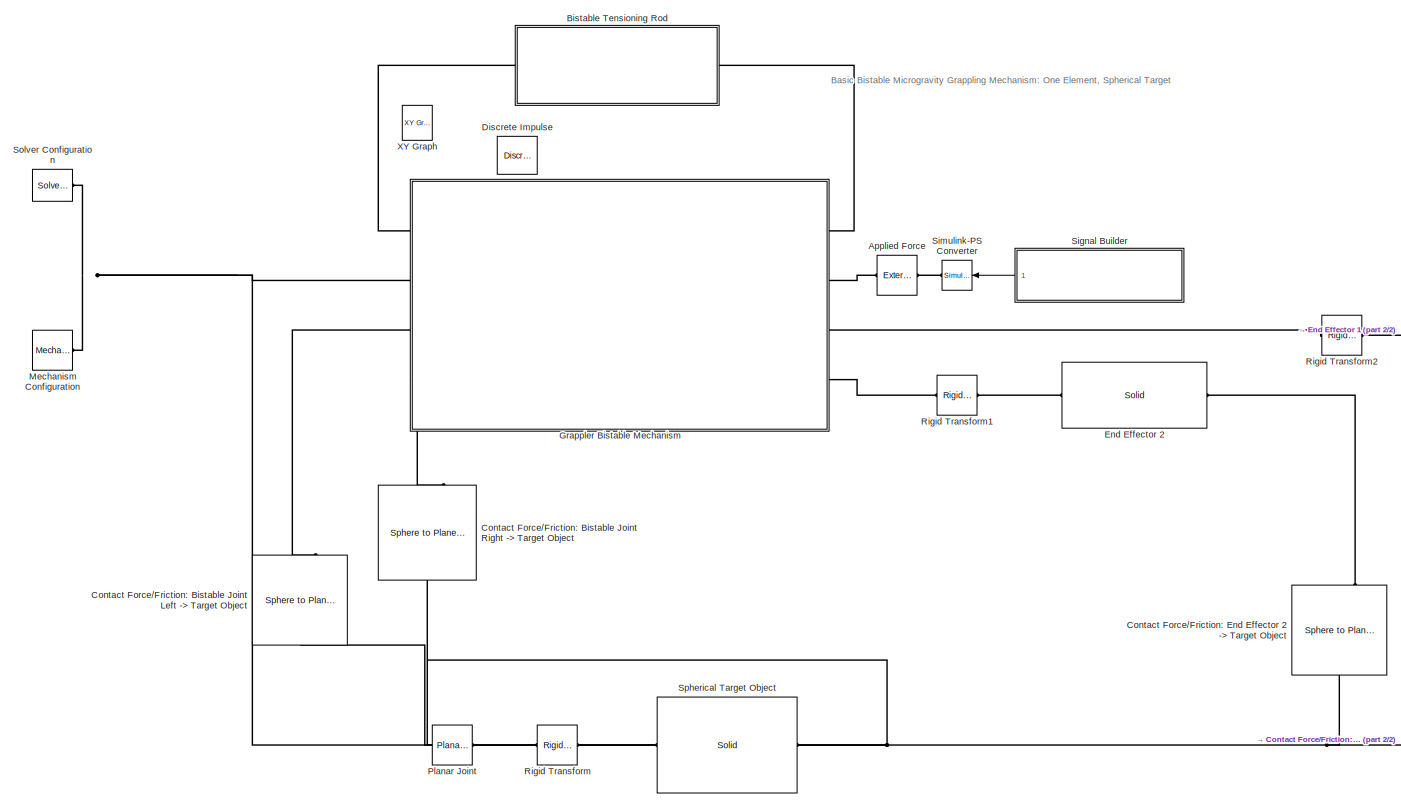
[diagram: root canvas - part 1/2, most of the canvas]
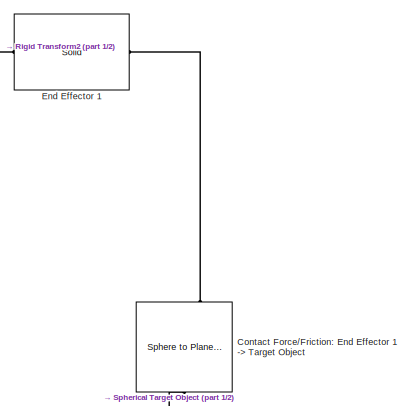
[diagram: root canvas - part 2/2, middle right region]
MODEL slx_64cc267df790
KIND model
CONFIG AbsTol = 1e-4
CONFIG EnableMultiTasking = off
CONFIG FixedStep = auto
CONFIG MaxStep = 1e-2
CONFIG MinStep = auto
CONFIG RelTol = 1e-4
CONFIG SampleTimeConstraint = Unconstrained
CONFIG Solver = ode15s
CONFIG SolverName = ode15s
CONFIG StartTime = 0.0
CONFIG StopTime = 10.0
BLOCK [Reference] Applied Force  REF=sm_lib/Forces and
Torques/External Force
and Torque
  Ports = [0, 0, 0, 0, 0, 1, 1]
  SourceBlock = sm_lib/Forces and\nTorques/External Force\nand Torque
  SourceProductBaseCode = MS
  SourceProductName = Simscape Multibody
  SourceType = External Force\nand Torque
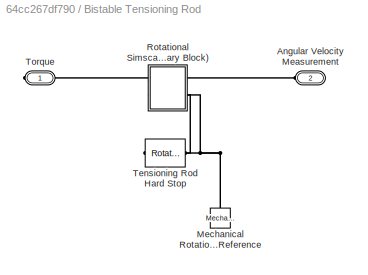
BLOCK [SubSystem] Bistable Tensioning Rod
  Ports = [0, 0, 0, 0, 0, 1, 1]
  RequestExecContextInheritance = off
BLOCK [PMIOPort] Bistable Tensioning Rod/Angular Velocity Measurement
  Port = 2
  Side = Left
BLOCK [Reference] Bistable Tensioning Rod/Mechanical Rotational Reference  REF=fl_lib/Mechanical/Rotational Elements/Mechanical
Rotational Reference
  Ports = [0, 0, 0, 0, 0, 1]
  SourceBlock = fl_lib/Mechanical/Rotational Elements/Mechanical\nRotational Reference
  SourceProductBaseCode = SS
  SourceProductName = Simscape
  SourceType = Mechanical\nRotational Reference
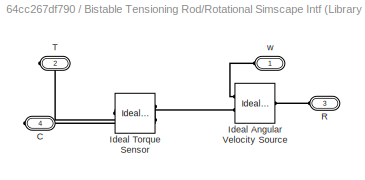
BLOCK [SubSystem] Bistable Tensioning Rod/Rotational Simscape Intf (Library Block)
  Ports = [0, 0, 0, 0, 0, 2, 2]
  RequestExecContextInheritance = off
BLOCK [PMIOPort] Bistable Tensioning Rod/Rotational Simscape Intf (Library Block)/C
  Port = 4
  Side = Right
BLOCK [Reference] Bistable Tensioning Rod/Rotational Simscape Intf (Library Block)/Ideal Angular Velocity Source  REF=fl_lib/Mechanical/Mechanical Sources/Ideal Angular
Velocity Source
  Ports = [0, 0, 0, 0, 0, 1, 2]
  SourceBlock = fl_lib/Mechanical/Mechanical Sources/Ideal Angular\nVelocity Source
  SourceProductBaseCode = SS
  SourceProductName = Simscape
  SourceType = Ideal Angular\nVelocity Source
BLOCK [Reference] Bistable Tensioning Rod/Rotational Simscape Intf (Library Block)/Ideal Torque Sensor  REF=fl_lib/Mechanical/Mechanical Sensors/Ideal Torque Sensor
  Ports = [0, 0, 0, 0, 0, 1, 2]
  SourceBlock = fl_lib/Mechanical/Mechanical Sensors/Ideal Torque Sensor
  SourceProductBaseCode = SS
  SourceProductName = Simscape
  SourceType = Ideal Torque Sensor
BLOCK [PMIOPort] Bistable Tensioning Rod/Rotational Simscape Intf (Library Block)/R
  Port = 3
  Side = Left
BLOCK [PMIOPort] Bistable Tensioning Rod/Rotational Simscape Intf (Library Block)/T
  Port = 2
  Side = Right
BLOCK [PMIOPort] Bistable Tensioning Rod/Rotational Simscape Intf (Library Block)/w
  Side = Left
BLOCK [Reference] Bistable Tensioning Rod/Tensioning Rod Hard Stop  REF=fl_lib/Mechanical/Rotational Elements/Rotational Hard Stop
  Ports = [0, 0, 0, 0, 0, 1, 1]
  SourceBlock = fl_lib/Mechanical/Rotational Elements/Rotational Hard Stop
  SourceProductBaseCode = SS
  SourceProductName = Simscape
  SourceType = Rotational Hard Stop
BLOCK [PMIOPort] Bistable Tensioning Rod/Torque
  Side = Right
BLOCK [Reference] Contact Force//Friction: Bistable Joint Left -> Target Object  REF=Contact_Forces_Lib/3D/Sphere to Plane Force
  Ports = [0, 1, 0, 0, 0, 1, 1]
  SourceBlock = Contact_Forces_Lib/3D/Sphere to Plane Force
  SourceProductName = Simscape Multibody Contact Forces Library
  SourceType = Sphere to Plane Force
BLOCK [Reference] Contact Force//Friction: Bistable Joint Right -> Target Object  REF=Contact_Forces_Lib/3D/Sphere to Plane Force
  Ports = [0, 1, 0, 0, 0, 1, 1]
  SourceBlock = Contact_Forces_Lib/3D/Sphere to Plane Force
  SourceProductName = Simscape Multibody Contact Forces Library
  SourceType = Sphere to Plane Force
BLOCK [Reference] Contact Force//Friction: End Effector 1 -> Target Object  REF=Contact_Forces_Lib/3D/Sphere to Plane Force
  Ports = [0, 1, 0, 0, 0, 1, 1]
  SourceBlock = Contact_Forces_Lib/3D/Sphere to Plane Force
  SourceProductName = Simscape Multibody Contact Forces Library
  SourceType = Sphere to Plane Force
BLOCK [Reference] Contact Force//Friction: End Effector 2 -> Target Object  REF=Contact_Forces_Lib/3D/Sphere to Plane Force
  Ports = [0, 1, 0, 0, 0, 1, 1]
  SourceBlock = Contact_Forces_Lib/3D/Sphere to Plane Force
  SourceProductName = Simscape Multibody Contact Forces Library
  SourceType = Sphere to Plane Force
BLOCK [Reference] Discrete Impulse  REF=dspsrcs4/Discrete 
Impulse
  IOType = siggen
  Ports = [0, 1]
  SourceBlock = dspsrcs4/Discrete \nImpulse
  SourceProductBaseCode = DS
  SourceProductName = DSP System Toolbox
  SourceType = Discrete Impulse
BLOCK [Reference] End Effector 1  REF=sm_lib/Body Elements/Solid
  Ports = [0, 0, 0, 0, 0, 1, 1]
  SourceBlock = sm_lib/Body Elements/Solid
  SourceProductBaseCode = MS
  SourceProductName = Simscape Multibody
  SourceType = Solid
BLOCK [Reference] End Effector 2  REF=sm_lib/Body Elements/Solid
  Ports = [0, 0, 0, 0, 0, 1, 1]
  SourceBlock = sm_lib/Body Elements/Solid
  SourceProductBaseCode = MS
  SourceProductName = Simscape Multibody
  SourceType = Solid
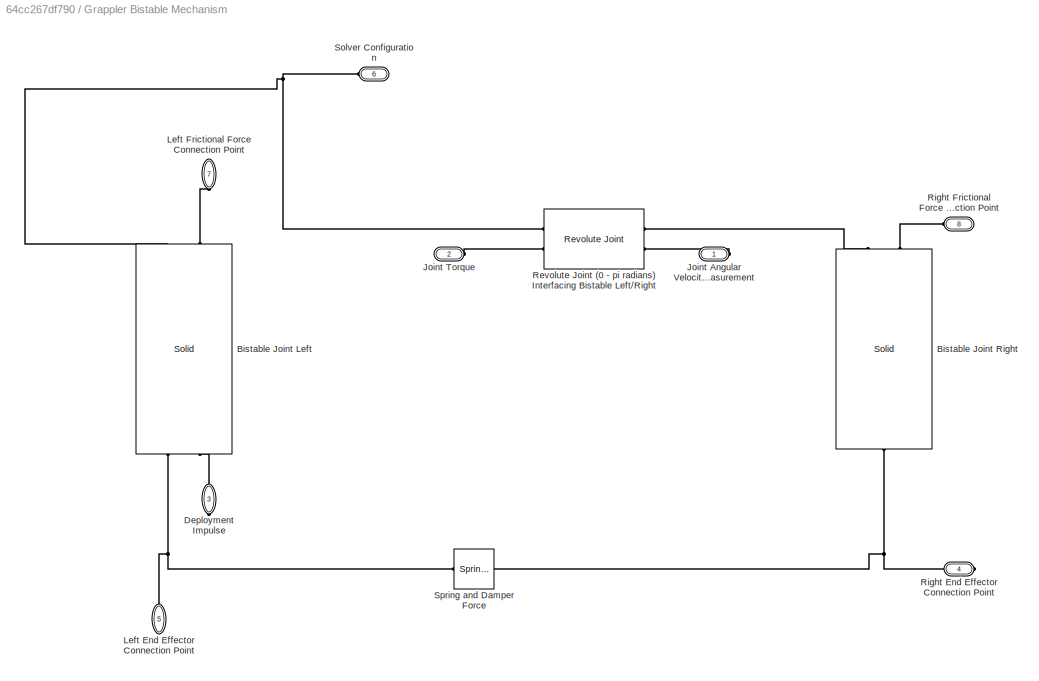
BLOCK [SubSystem] Grappler Bistable Mechanism 
  Ports = [0, 0, 0, 0, 0, 4, 4]
  RequestExecContextInheritance = off
BLOCK [Reference] Grappler Bistable Mechanism /Bistable Joint Left  REF=sm_lib/Body Elements/Solid
  Ports = [0, 0, 0, 0, 0, 2, 2]
  SourceBlock = sm_lib/Body Elements/Solid
  SourceProductBaseCode = MS
  SourceProductName = Simscape Multibody
  SourceType = Solid
BLOCK [Reference] Grappler Bistable Mechanism /Bistable Joint Right  REF=sm_lib/Body Elements/Solid
  Ports = [0, 0, 0, 0, 0, 2, 1]
  SourceBlock = sm_lib/Body Elements/Solid
  SourceProductBaseCode = MS
  SourceProductName = Simscape Multibody
  SourceType = Solid
BLOCK [PMIOPort] Grappler Bistable Mechanism /Deployment Impulse
  Port = 3
  Side = Right
BLOCK [PMIOPort] Grappler Bistable Mechanism /Joint Angular Velocity Measurement
  Side = Right
BLOCK [PMIOPort] Grappler Bistable Mechanism /Joint Torque
  Port = 2
  Side = Left
BLOCK [PMIOPort] Grappler Bistable Mechanism /Left End Effector Connection Point
  Port = 5
  Side = Right
BLOCK [PMIOPort] Grappler Bistable Mechanism /Left Frictional Force Connection Point
  Port = 7
  Side = Left
BLOCK [Reference] Grappler Bistable Mechanism /Revolute Joint (0 - pi radians) Interfacing Bistable Left//Right  REF=sm_lib/Joints/Revolute Joint
  Ports = [0, 0, 0, 0, 0, 2, 2]
  SourceBlock = sm_lib/Joints/Revolute Joint
  SourceProductBaseCode = MS
  SourceProductName = Simscape Multibody
  SourceType = Revolute Joint
BLOCK [PMIOPort] Grappler Bistable Mechanism /Right End Effector Connection Point 
  Port = 4
  Side = Right
BLOCK [PMIOPort] Grappler Bistable Mechanism /Right Frictional Force Connection Point
  Port = 8
  Side = Left
BLOCK [PMIOPort] Grappler Bistable Mechanism /Solver Configuration
  Port = 6
  Side = Left
BLOCK [Reference] Grappler Bistable Mechanism /Spring and Damper Force  REF=sm_lib/Forces and
Torques/Spring and
Damper Force
  Ports = [0, 0, 0, 0, 0, 1, 1]
  SourceBlock = sm_lib/Forces and\nTorques/Spring and\nDamper Force
  SourceProductBaseCode = MS
  SourceProductName = Simscape Multibody
  SourceType = Spring and\nDamper Force
BLOCK [Reference] Mechanism Configuration  REF=sm_lib/Utilities/Mechanism
Configuration
  Ports = [0, 0, 0, 0, 0, 0, 1]
  SourceBlock = sm_lib/Utilities/Mechanism\nConfiguration
  SourceProductBaseCode = MS
  SourceProductName = Simscape Multibody
  SourceType = Mechanism\nConfiguration
BLOCK [Reference] Planar Joint  REF=sm_lib/Joints/Planar Joint
  Ports = [0, 0, 0, 0, 0, 1, 1]
  SourceBlock = sm_lib/Joints/Planar Joint
  SourceProductBaseCode = MS
  SourceProductName = Simscape Multibody
  SourceType = Planar Joint
BLOCK [Reference] Rigid Transform  REF=sm_lib/Frames and
Transforms/Rigid
Transform
  Ports = [0, 0, 0, 0, 0, 1, 1]
  SourceBlock = sm_lib/Frames and\nTransforms/Rigid\nTransform
  SourceProductBaseCode = MS
  SourceProductName = Simscape Multibody
  SourceType = Rigid\nTransform
BLOCK [Reference] Rigid Transform1  REF=sm_lib/Frames and
Transforms/Rigid
Transform
  Ports = [0, 0, 0, 0, 0, 1, 1]
  SourceBlock = sm_lib/Frames and\nTransforms/Rigid\nTransform
  SourceProductBaseCode = MS
  SourceProductName = Simscape Multibody
  SourceType = Rigid\nTransform
BLOCK [Reference] Rigid Transform2  REF=sm_lib/Frames and
Transforms/Rigid
Transform
  Ports = [0, 0, 0, 0, 0, 1, 1]
  SourceBlock = sm_lib/Frames and\nTransforms/Rigid\nTransform
  SourceProductBaseCode = MS
  SourceProductName = Simscape Multibody
  SourceType = Rigid\nTransform
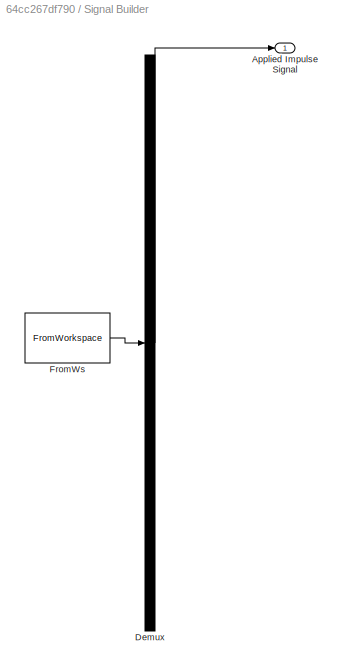
BLOCK [SubSystem] Signal Builder
  ClipboardFcn = sigbuilder_block('clipboard');
  CloseFcn = sigbuilder_block('close');
  ContinueFcn = sigbuilder_block('continue');
  CopyFcn = sigbuilder_block('copy');
  DeleteFcn = sigbuilder_block('delete');
  LoadFcn = sigbuilder_block('load');
  MaskHideContents = on
  ModelCloseFcn = sigbuilder_block('modelClose');
  NameChangeFcn = sigbuilder_block('namechange');
  OpenFcn = sigbuilder_block('open',[524 335 550.5 325 ]);
  PauseFcn = sigbuilder_block('pause');
  Ports = [0, 1]
  PreSaveFcn = sigbuilder_block('preSave');
  RequestExecContextInheritance = off
  StartFcn = sigbuilder_block('start');
  StopFcn = sigbuilder_block('stop');
  Tag = STV Subsys
BLOCK [Outport] Signal Builder/Applied Impulse Signal
  IconDisplay = Port number
  Tag = STV Outport
BLOCK [Demux] Signal Builder/Demux
  Outputs = 1
  Ports = [1, 1]
  Tag = STV Demux
BLOCK [FromWorkspace] Signal Builder/FromWs
  SampleTime = 0
  Tag = STV FromWs
  VariableName = tuvar
  ZeroCross = on
BLOCK [Reference] Simulink-PS Converter  REF=nesl_utility/Simulink-PS
Converter
  Ports = [1, 0, 0, 0, 0, 0, 1]
  SourceBlock = nesl_utility/Simulink-PS\nConverter
  SourceProductBaseCode = SS
  SourceProductName = Simscape
  SourceType = Simulink-PS\nConverter
BLOCK [Reference] Solver Configuration  REF=nesl_utility/Solver
Configuration
  Ports = [0, 0, 0, 0, 0, 0, 1]
  SourceBlock = nesl_utility/Solver\nConfiguration
  SourceProductBaseCode = SS
  SourceProductName = Simscape
  SourceType = Solver\nConfiguration
BLOCK [Reference] Spherical Target Object  REF=sm_lib/Body Elements/Solid
  Ports = [0, 0, 0, 0, 0, 1, 1]
  SourceBlock = sm_lib/Body Elements/Solid
  SourceProductBaseCode = MS
  SourceProductName = Simscape Multibody
  SourceType = Solid
BLOCK [Reference] XY Graph  REF=simulink/Sinks/XY Graph
  IOType = viewer
  Ports = [2]
  SourceBlock = simulink/Sinks/XY Graph
  SourceProductBaseCode = SL
  SourceProductName = Simulink
  SourceType = XY scope.
ANNOTATION (root): Basic Bistable Microgravity Grappling Mechanism: One Element, Spherical Target
LINE Signal Builder:1 -> Simulink-PS Converter:1
PLINE Applied Force:LConn1 -- Simulink-PS Converter:RConn1
PLINE Applied Force:RConn1 -- Grappler Bistable Mechanism :RConn2
PLINE Bistable Tensioning Rod/Angular Velocity Measurement:RConn1 -- Bistable Tensioning Rod/Rotational Simscape Intf (Library Block):LConn1
PNET net1: Bistable Tensioning Rod/Mechanical Rotational Reference:LConn1 -- Bistable Tensioning Rod/Rotational Simscape Intf (Library Block):LConn2 -- Bistable Tensioning Rod/Tensioning Rod Hard Stop:LConn1
PLINE Bistable Tensioning Rod/Rotational Simscape Intf (Library Block)/C:RConn1 -- Bistable Tensioning Rod/Rotational Simscape Intf (Library Block)/Ideal Torque Sensor:RConn1
PLINE Bistable Tensioning Rod/Rotational Simscape Intf (Library Block)/Ideal Angular Velocity Source:LConn1 -- Bistable Tensioning Rod/Rotational Simscape Intf (Library Block)/R:RConn1
PLINE Bistable Tensioning Rod/Rotational Simscape Intf (Library Block)/Ideal Angular Velocity Source:RConn1 -- Bistable Tensioning Rod/Rotational Simscape Intf (Library Block)/w:RConn1
PLINE Bistable Tensioning Rod/Rotational Simscape Intf (Library Block)/Ideal Angular Velocity Source:RConn2 -- Bistable Tensioning Rod/Rotational Simscape Intf (Library Block)/Ideal Torque Sensor:LConn1
PLINE Bistable Tensioning Rod/Rotational Simscape Intf (Library Block)/Ideal Torque Sensor:RConn2 -- Bistable Tensioning Rod/Rotational Simscape Intf (Library Block)/T:RConn1
PLINE Bistable Tensioning Rod/Rotational Simscape Intf (Library Block):RConn1 -- Bistable Tensioning Rod/Torque:RConn1
PLINE Bistable Tensioning Rod/Rotational Simscape Intf (Library Block):RConn2 -- Bistable Tensioning Rod/Tensioning Rod Hard Stop:RConn1
PLINE Bistable Tensioning Rod:LConn1 -- Grappler Bistable Mechanism :RConn1
PLINE Bistable Tensioning Rod:RConn1 -- Grappler Bistable Mechanism :LConn1
PNET net2: Contact Force//Friction: Bistable Joint Left -> Target Object:LConn1 -- Contact Force//Friction: Bistable Joint Right -> Target Object:LConn1 -- Contact Force//Friction: End Effector 1 -> Target Object:LConn1 -- Contact Force//Friction: End Effector 2 -> Target Object:LConn1 -- Spherical Target Object:LConn1
PLINE Contact Force//Friction: Bistable Joint Left -> Target Object:RConn1 -- Grappler Bistable Mechanism :LConn3
PLINE Contact Force//Friction: Bistable Joint Right -> Target Object:RConn1 -- Grappler Bistable Mechanism :LConn4
PLINE Contact Force//Friction: End Effector 1 -> Target Object:RConn1 -- End Effector 1:RConn1
PLINE Contact Force//Friction: End Effector 2 -> Target Object:RConn1 -- End Effector 2:RConn1
PLINE End Effector 1:LConn1 -- Rigid Transform2:RConn1
PLINE End Effector 2:LConn1 -- Rigid Transform1:RConn1
PNET net3: Grappler Bistable Mechanism /Bistable Joint Left:LConn1 -- Grappler Bistable Mechanism /Revolute Joint (0 - pi radians) Interfacing Bistable Left//Right:LConn1 -- Grappler Bistable Mechanism /Solver Configuration:RConn1
PLINE Grappler Bistable Mechanism /Bistable Joint Left:LConn2 -- Grappler Bistable Mechanism /Left Frictional Force Connection Point:RConn1
PNET net4: Grappler Bistable Mechanism /Bistable Joint Left:RConn1 -- Grappler Bistable Mechanism /Left End Effector Connection Point:RConn1 -- Grappler Bistable Mechanism /Spring and Damper Force:LConn1
PLINE Grappler Bistable Mechanism /Bistable Joint Left:RConn2 -- Grappler Bistable Mechanism /Deployment Impulse:RConn1
PLINE Grappler Bistable Mechanism /Bistable Joint Right:LConn1 -- Grappler Bistable Mechanism /Revolute Joint (0 - pi radians) Interfacing Bistable Left//Right:RConn1
PLINE Grappler Bistable Mechanism /Bistable Joint Right:LConn2 -- Grappler Bistable Mechanism /Right Frictional Force Connection Point:RConn1
PNET net5: Grappler Bistable Mechanism /Bistable Joint Right:RConn1 -- Grappler Bistable Mechanism /Right End Effector Connection Point :RConn1 -- Grappler Bistable Mechanism /Spring and Damper Force:RConn1
PLINE Grappler Bistable Mechanism /Joint Angular Velocity Measurement:RConn1 -- Grappler Bistable Mechanism /Revolute Joint (0 - pi radians) Interfacing Bistable Left//Right:RConn2
PLINE Grappler Bistable Mechanism /Joint Torque:RConn1 -- Grappler Bistable Mechanism /Revolute Joint (0 - pi radians) Interfacing Bistable Left//Right:LConn2
PNET net6: Grappler Bistable Mechanism :LConn2 -- Mechanism Configuration:RConn1 -- Planar Joint:LConn1 -- Solver Configuration:RConn1
PLINE Grappler Bistable Mechanism :RConn3 -- Rigid Transform2:LConn1
PLINE Grappler Bistable Mechanism :RConn4 -- Rigid Transform1:LConn1
PLINE Planar Joint:RConn1 -- Rigid Transform:LConn1
PLINE Rigid Transform:RConn1 -- Spherical Target Object:RConn1
note: PNET lines group multi-terminal physical nets as a canonical sorted terminal list (undirected conserving connections); 2-terminal nets keep the pairwise PLINE form
